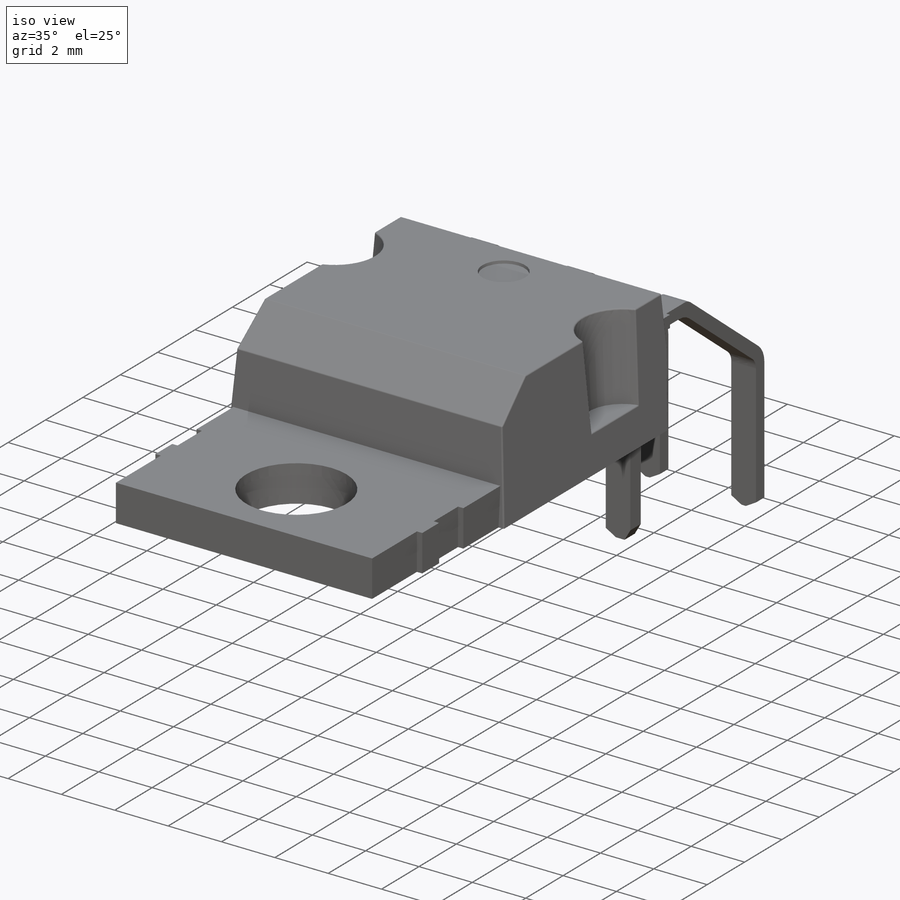
[diagram: iso view]
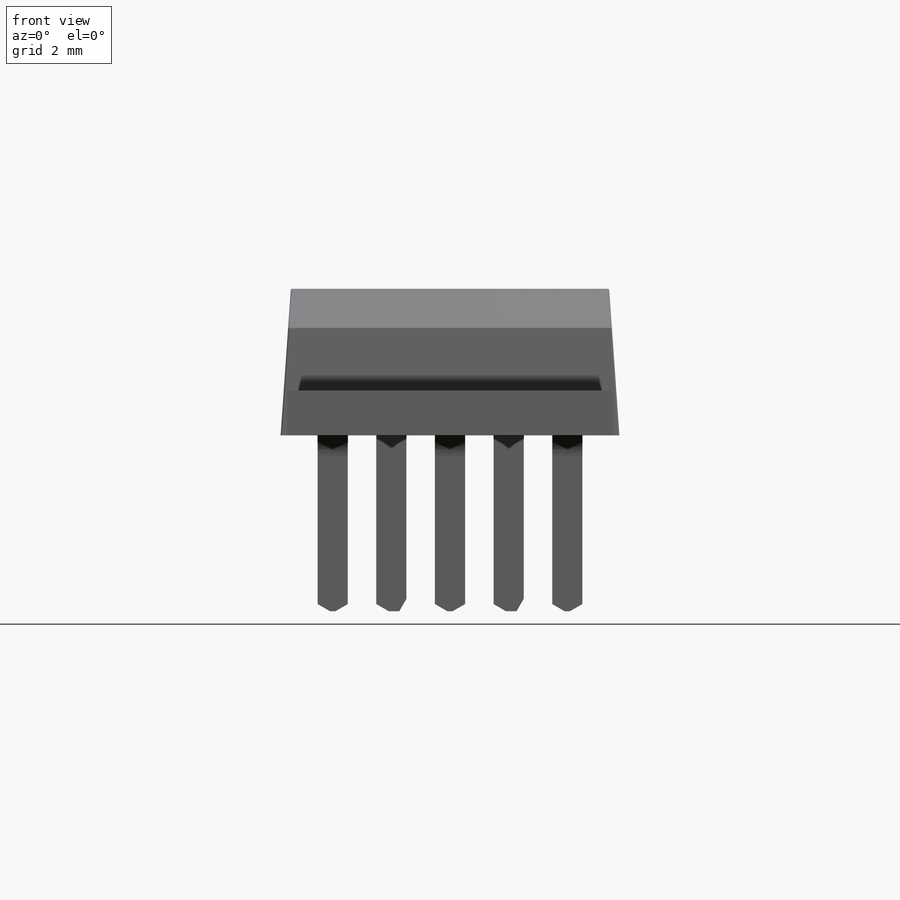
[diagram: front view]
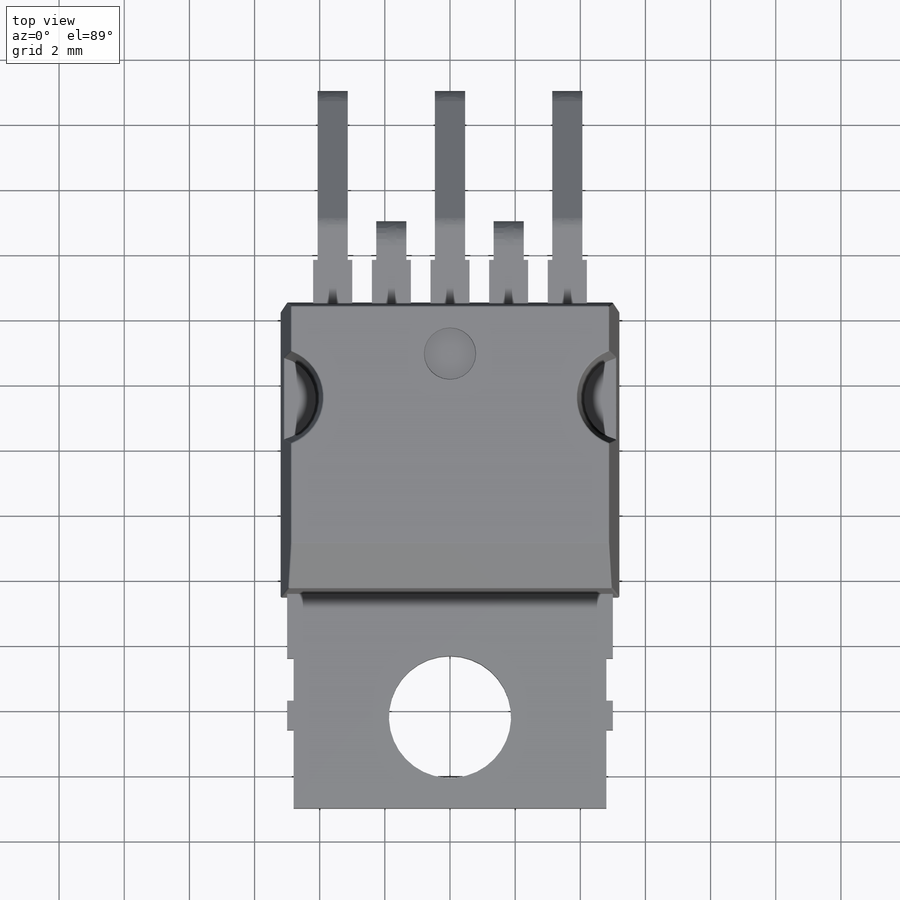
[diagram: top view]
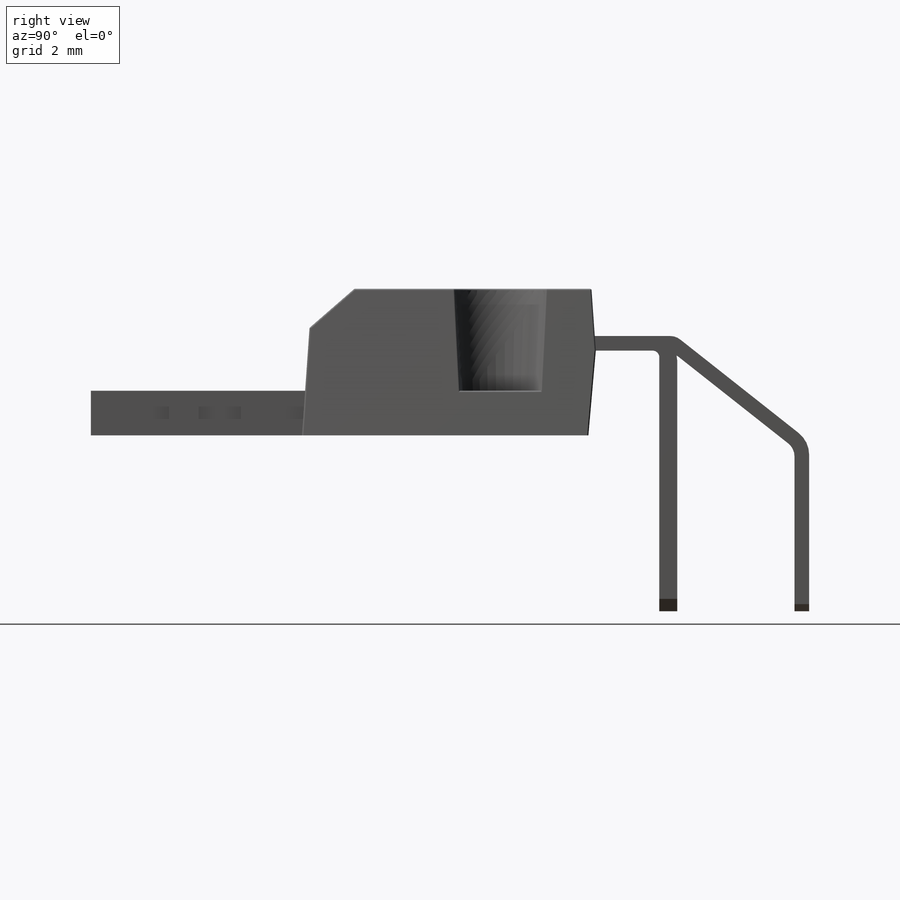
[diagram: right view]
SOLIDWORKS PART (.sldprt)
format: sldprt  version: not decoded by parser v0  size: 775,680 bytes
history: native  units: mm
features: sketch x10, cut_extrude x5, fillet x5, extrude x4, pattern_linear x2, chamfer x2, material x1, plane x1 (+12 scaffold rows collapsed)
feature tree (42):
  scaffold x12  (default folders/planes/origin — collapsed)
  material  "Material <not specified>"
  sketch  "Sketch1"  dims[D1=10.4mm D2=9.2mm D3=3.29mm D4=3.1mm]
  extrude  "Extrude1"  Depth=4.5mm
  sketch  "Sketch4"  dims[c1.D1=~1.424048mm c2.D1=85.0deg c2.D2=2.6mm c2.D3=0.52mm]
  cut_extrude  "Cut-Extrude1"  [1 undecoded]
  sketch  "Sketch5"  dims[c1.D1=5.36mm c1.D2=2.68mm c1.D3=1.2mm c1.D4=0.7mm c1.D5=0.7mm c1.D6=0.5mm c2.D1=10.0mm c2.D2=15.5mm c2.D3=2.4mm c2.D4=0.2mm c2.D5=4.6mm c2.D6=1.3mm]
  extrude  "Extrude3"  Depth=1.37mm
  sketch  "Sketch8"  dims[D2=3.75mm D1=2.8mm]
  cut_extrude  "Cut-Extrude3"  [1 undecoded]
  sketch  "Sketch2"  dims[c1.D1=0.45mm c1.D2=0.45mm c1.D3=1.7mm c1.D4=0.08mm c1.D5=1.2mm c1.D6=0.52mm c1.D7=0.8mm c2.D7=63.0deg c2.D4=0.17mm c2.D8=1.0mm c3.D7=14.7mm c3.D9=1.2mm c3.D3=1.15mm c3.D4=0.45mm c4.D3=15.0mm c4.D5=17.85mm c4.D6=90.0deg c5.D5=18.8mm c5.D6=21.4mm c5.D7=3.0mm c5.D2=0.45mm c6.D6=5.0mm c6.D8=19.25mm]
  extrude  "Extrude2"  Depth=0.6mm
  pattern_linear  "LPattern1"  Count1=2 Count2=2 Spacing1=3.6mm Spacing2=3.6mm
  sketch  "Sketch7"  dims[D2=1.6mm D1=1.6mm]
  cut_extrude  "Cut-Extrude2"  Depth=0.1mm
  chamfer  "Chamfer1"  Distance=1.2mm Angle=45deg
  sketch  "Sketch9"  dims[D2=3.0mm D1=2.8mm D3=0.2mm D4=0.2mm]
  cut_extrude  "Cut-Extrude4"  [1 undecoded]
  sketch  "Sketch10"  dims[c1.D2=22.5mm c1.D1=0.55mm c2.D2=15.2mm c2.D1=0.0mm]
  extrude  "Extrude4"  Depth=0.6mm
  pattern_linear  "LPattern2"  Count1=2 Count2=1 Spacing1=3.6mm Spacing2=50mm
  sketch  "Sketch11"  dims[D1=0.925mm D2=0.925mm D3=0.925mm D4=0.925mm D5=0.925mm D6=1.3mm]
  cut_extrude  "Cut-Extrude5"  [1 undecoded]
  fillet  "Fillet1"  Radius=0.85mm
  fillet  "Fillet2"  Radius=0.5mm
  fillet  "Fillet3"  Radius=0.05mm
  fillet  "Fillet4"  Radius=0.2mm
  fillet  "Fillet5"  Radius=0.75mm
  chamfer  "Chamfer2"  Distance=0.22mm Angle=60deg
  plane  "Board Plane"  Offset=0.5mm
  sketch  "Component_Outline"
decode coverage: 23 of 28 modeling features carry decoded parameters
note: ~ marks probable driven/reference dimensions
note: 4 parameter values undecoded
summary: no parameter record found for 4 features
note: suppression state not decoded; provenance and decode notes live in map.json
